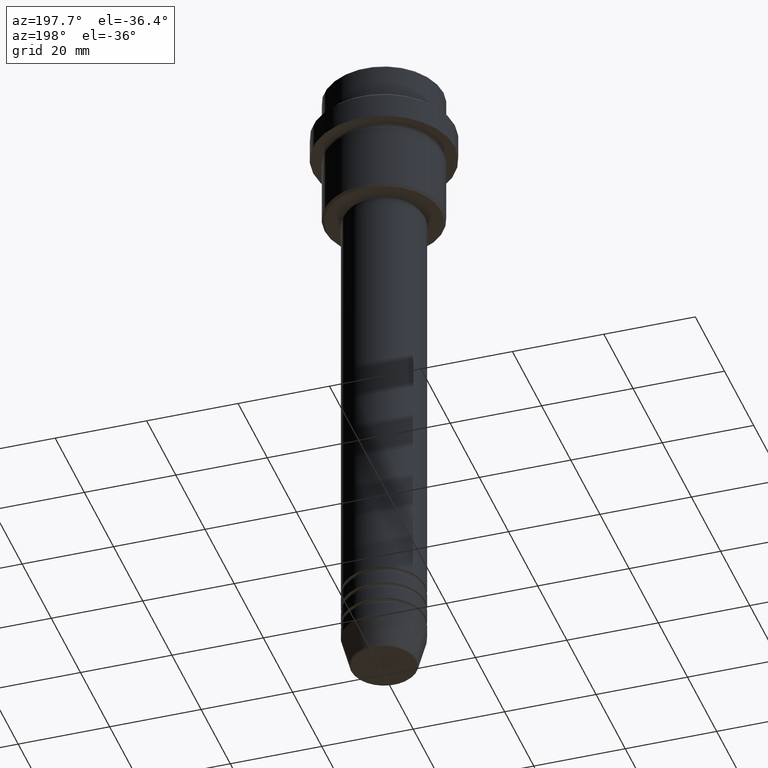
[diagram: clean part render]
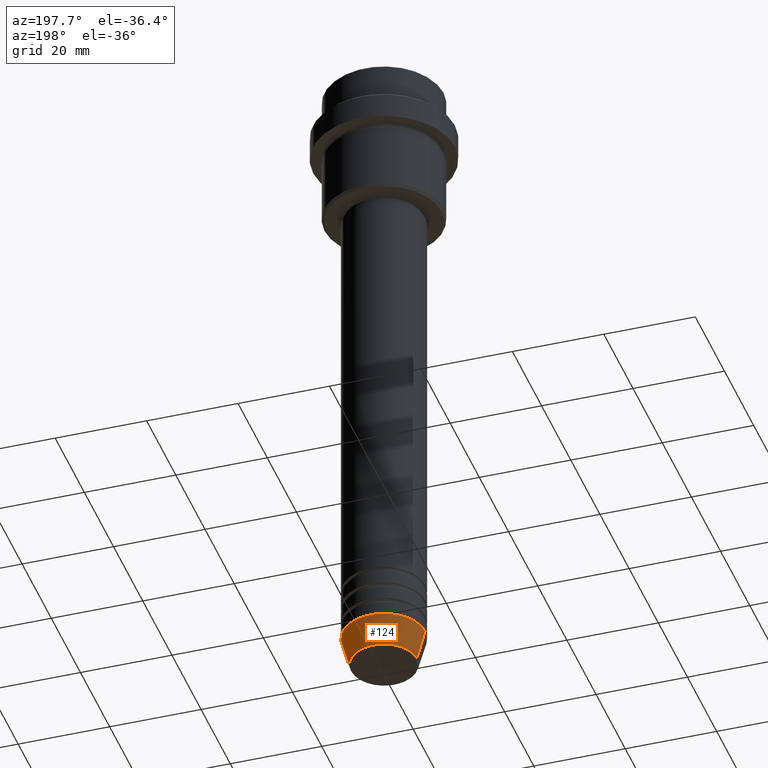
[diagram: same view with one face highlighted and labeled with its STEP entity id]
A machine part, auxiliary view. The second image highlights one B-rep face of the part: STEP entity #124.
In plain terms, the highlighted conical surface has half-angle 15 deg.
Its self-contained STEP definition (entity closure, byte-faithful):
#23 = CARTESIAN_POINT ( 'NONE',  ( 9.000000000000000000, 0.000000000000000000, -139.0000000000000000 ) ) ;
#26 = AXIS2_PLACEMENT_3D ( 'NONE', #904, #1355, #374 ) ;
#33 = VECTOR ( 'NONE', #218, 1000.000000000000000 ) ;
#52 = CARTESIAN_POINT ( 'NONE',  ( 0.000000000000000000, 0.000000000000000000, -145.6294095225512990 ) ) ;
#72 = VERTEX_POINT ( 'NONE', #23 ) ;
#75 = DIRECTION ( 'NONE',  ( -0.000000000000000000, -0.000000000000000000, 1.000000000000000000 ) ) ;
#124 = ADVANCED_FACE ( 'NONE', ( #824 ), #645, .T. ) ;
#139 = LINE ( 'NONE', #1228, #1270 ) ;
#207 = EDGE_CURVE ( 'NONE', #920, #594, #1057, .T. ) ;
#218 = DIRECTION ( 'NONE',  ( -0.2588190451025213501, 3.169619151431772337E-17, 0.9659258262890680902 ) ) ;
#277 = DIRECTION ( 'NONE',  ( 1.000000000000000000, 0.000000000000000000, 0.000000000000000000 ) ) ;
#298 = EDGE_LOOP ( 'NONE', ( #392, #369, #547, #437 ) ) ;
#369 = ORIENTED_EDGE ( 'NONE', *, *, #1203, .T. ) ;
#374 = DIRECTION ( 'NONE',  ( 1.000000000000000000, 0.000000000000000000, 0.000000000000000000 ) ) ;
#392 = ORIENTED_EDGE ( 'NONE', *, *, #207, .T. ) ;
#437 = ORIENTED_EDGE ( 'NONE', *, *, #936, .F. ) ;
#447 = AXIS2_PLACEMENT_3D ( 'NONE', #1164, #75, #1296 ) ;
#547 = ORIENTED_EDGE ( 'NONE', *, *, #709, .F. ) ;
#594 = VERTEX_POINT ( 'NONE', #880 ) ;
#645 = CONICAL_SURFACE ( 'NONE', #26, 9.000000000000000000, 0.2617993877991500740 ) ;
#700 = DIRECTION ( 'NONE',  ( -0.000000000000000000, -0.000000000000000000, 1.000000000000000000 ) ) ;
#709 = EDGE_CURVE ( 'NONE', #72, #1135, #1062, .T. ) ;
#759 = LINE ( 'NONE', #1417, #33 ) ;
#773 = CARTESIAN_POINT ( 'NONE',  ( -9.000000000000000000, 1.102182119232617714E-15, -139.0000000000000000 ) ) ;
#824 = FACE_OUTER_BOUND ( 'NONE', #298, .T. ) ;
#880 = CARTESIAN_POINT ( 'NONE',  ( -7.223655072137189492, 9.934123627281765110E-16, -145.6294095225512990 ) ) ;
#904 = CARTESIAN_POINT ( 'NONE',  ( 0.000000000000000000, 0.000000000000000000, -139.0000000000000000 ) ) ;
#920 = VERTEX_POINT ( 'NONE', #1036 ) ;
#936 = EDGE_CURVE ( 'NONE', #920, #72, #139, .T. ) ;
#1036 = CARTESIAN_POINT ( 'NONE',  ( 7.223655072137188604, 0.000000000000000000, -145.6294095225512990 ) ) ;
#1057 = CIRCLE ( 'NONE', #1195, 7.223655072137188604 ) ;
#1062 = CIRCLE ( 'NONE', #447, 9.000000000000000000 ) ;
#1135 = VERTEX_POINT ( 'NONE', #773 ) ;
#1153 = DIRECTION ( 'NONE',  ( 0.2588190451025213501, 0.000000000000000000, 0.9659258262890680902 ) ) ;
#1164 = CARTESIAN_POINT ( 'NONE',  ( 0.000000000000000000, 0.000000000000000000, -139.0000000000000000 ) ) ;
#1195 = AXIS2_PLACEMENT_3D ( 'NONE', #52, #700, #277 ) ;
#1203 = EDGE_CURVE ( 'NONE', #594, #1135, #759, .T. ) ;
#1228 = CARTESIAN_POINT ( 'NONE',  ( 9.000000000000000000, 0.000000000000000000, -139.0000000000000000 ) ) ;
#1270 = VECTOR ( 'NONE', #1153, 1000.000000000000000 ) ;
#1296 = DIRECTION ( 'NONE',  ( 1.000000000000000000, 0.000000000000000000, 0.000000000000000000 ) ) ;
#1355 = DIRECTION ( 'NONE',  ( -0.000000000000000000, -0.000000000000000000, 1.000000000000000000 ) ) ;
#1417 = CARTESIAN_POINT ( 'NONE',  ( -9.000000000000000000, 1.102182119232617714E-15, -139.0000000000000000 ) ) ;